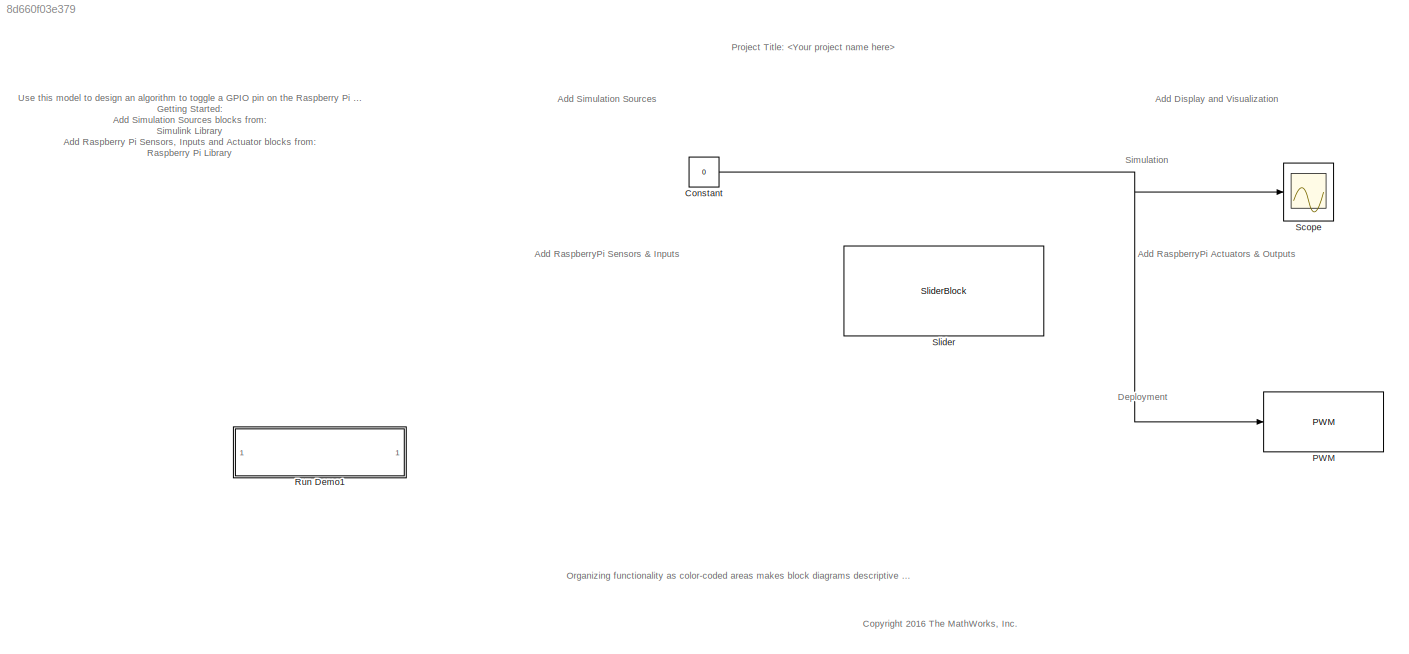
MODEL slx_8d660f03e379
KIND model
CONFIG AbsTol = auto
CONFIG EnableMultiTasking = on
CONFIG FixedStep = auto
CONFIG MaxStep = auto
CONFIG MinStep = auto
CONFIG RelTol = 1e-3
CONFIG SampleTimeConstraint = Unconstrained
CONFIG Solver = ode45
CONFIG SolverName = ode45
CONFIG StartTime = 0.0
CONFIG StopTime = 10.0
BLOCK [Constant] Constant
  Value = 0
BLOCK [Reference] PWM  REF=raspberrypilib/PWM
  Ports = [1]
  SourceBlock = raspberrypilib/PWM
  SourceProductBaseCode = RASPPI
  SourceProductName = Simulink Support Package for Raspberry Pi Hardware
  SourceType = raspi.internal.PWMBlock
BLOCK [SubSystem] Run Demo1
  Description = Controls host-side RTDX processing.
  Ports = []
  RequestExecContextInheritance = off
  ShowPortLabels = none
  UserDataPersistent = on
BLOCK [Scope] Scope
  Floating = off
  NumInputPorts = 1
  Ports = [1]
  ScopeSpecificationString = Simulink.scopes.TimeScopeBlockCfg('CurrentConfiguration', extmgr.ConfigurationSet(extmgr.Configuration('Core','General UI',true),extmgr.Configuration('Core','Source UI',true),extmgr.Configuration('Sources','WiredSimulink',true,'DataLoggingLimitDataPoints',true,'DataLoggingSaveFormat','Array','DataLoggingDecimation','1','DataLoggingDecimateData',true),extmgr.Configuration('Visuals','Time Domain',tr...<+1449ch>
BLOCK [SliderBlock] Slider
  ScaleMax = 1
ANNOTATION (root): Organizing functionality as color-coded areas makes block diagrams descriptive and helps to develop increasingly complex algorithms.
ANNOTATION (root): Use this model to design an algorithm to toggle a GPIO pin on the Raspberry Pi Hardware. Getting Started: Add Simulation Sources blocks from: Simulink Library Add Raspberry Pi Sensors, Inputs and Actuator blocks from: Raspberry Pi Library Configure Raspberry Pi Hardware: Open Model Configuration Parameters dialog Under the Hardware Implementation option, select the Raspberry Pi hardware from the H...<+344ch>
ANNOTATION (root): Add Display and Visualization
ANNOTATION (root): Add RaspberryPi Actuators & Outputs
ANNOTATION (root): Add RaspberryPi Sensors & Inputs
ANNOTATION (root): Add Simulation Sources
ANNOTATION (root): <copyright redacted>
ANNOTATION (root): Deployment
ANNOTATION (root): Project Title:
ANNOTATION (root): Simulation
NET Constant:1 -> PWM:1, Scope:1
note: NET lines group one-source signal fan-out (src -> all destinations, sorted); 1:1 wires keep LINE
